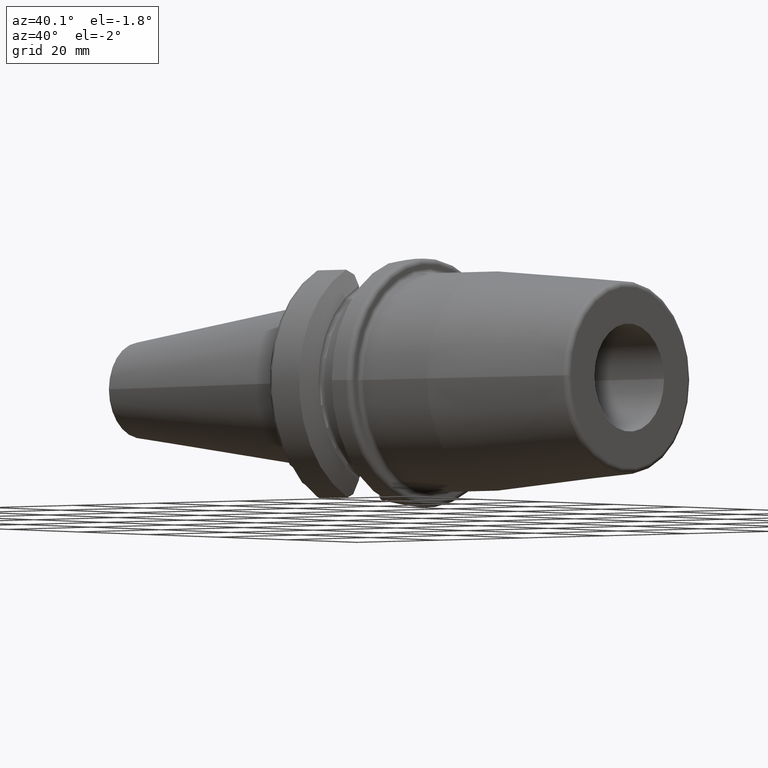
[diagram: clean part render]
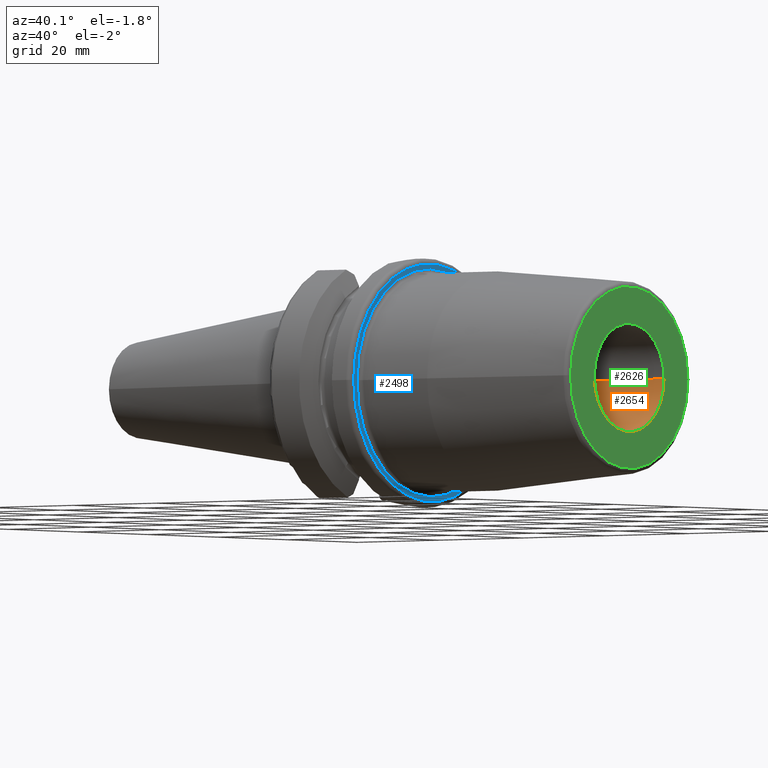
[diagram: same view with three faces highlighted in distinct colors, each labeled with its STEP entity id]
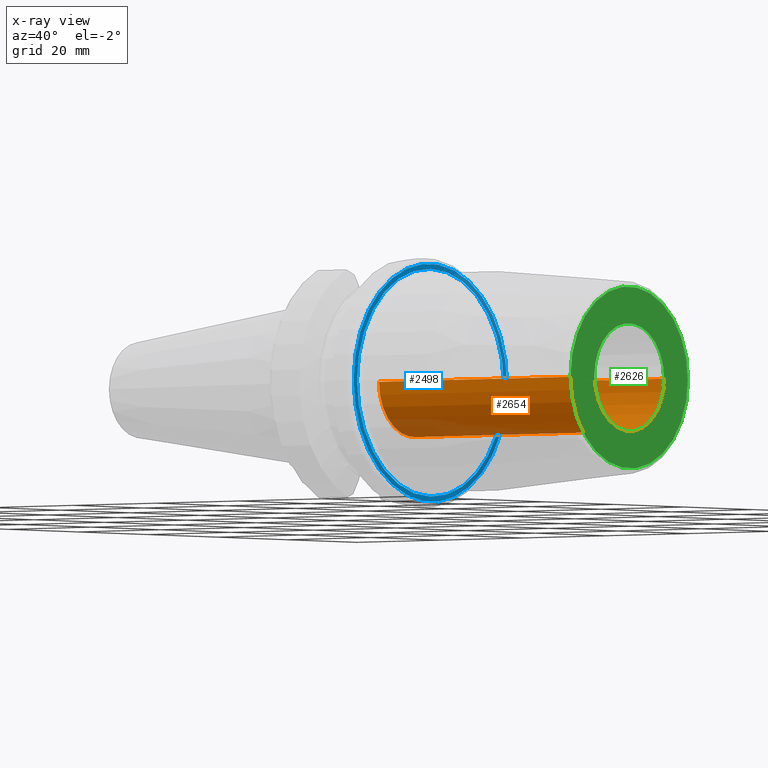
[diagram: x-ray of the same camera — body ghosted, the three highlighted faces saturated]
A machine part, auxiliary view with three faces highlighted in distinct colors.
The next image is the same camera in x-ray (body ghosted, the three faces saturated) — at least one of them is partly hidden behind the body in this view.
Their STEP definitions:

[orange] entity #2654 — the highlighted cylindrical surface (partial cylindrical patch) has radius 10 mm, axis along (-1, 0, 0).
#903=CARTESIAN_POINT('',(7.E1,0.E0,0.E0));
#904=DIRECTION('',(-1.E0,0.E0,0.E0));
#905=DIRECTION('',(0.E0,1.E0,0.E0));
#906=AXIS2_PLACEMENT_3D('',#903,#904,#905);
#918=DIRECTION('',(-1.E0,0.E0,0.E0));
#919=VECTOR('',#918,5.2E1);
#920=CARTESIAN_POINT('',(7.E1,-1.E1,0.E0));
#921=LINE('',#920,#919);
#922=DIRECTION('',(-1.E0,0.E0,0.E0));
#923=VECTOR('',#922,5.2E1);
#924=CARTESIAN_POINT('',(7.E1,1.E1,0.E0));
#925=LINE('',#924,#923);
#931=CARTESIAN_POINT('',(1.8E1,0.E0,0.E0));
#932=DIRECTION('',(-1.E0,0.E0,0.E0));
#933=DIRECTION('',(0.E0,1.E0,0.E0));
#934=AXIS2_PLACEMENT_3D('',#931,#932,#933);
#1375=CARTESIAN_POINT('',(1.8E1,-1.E1,0.E0));
#1376=CARTESIAN_POINT('',(1.8E1,1.E1,0.E0));
#1377=VERTEX_POINT('',#1375);
#1378=VERTEX_POINT('',#1376);
#1379=CARTESIAN_POINT('',(7.E1,-1.E1,0.E0));
#1380=CARTESIAN_POINT('',(7.E1,1.E1,0.E0));
#1381=VERTEX_POINT('',#1379);
#1382=VERTEX_POINT('',#1380);
#2642=CARTESIAN_POINT('',(7.E1,0.E0,0.E0));
#2643=DIRECTION('',(-1.E0,0.E0,0.E0));
#2644=DIRECTION('',(0.E0,-1.E0,0.E0));
#2645=AXIS2_PLACEMENT_3D('',#2642,#2643,#2644);
#2646=CYLINDRICAL_SURFACE('',#2645,1.E1);
#2647=ORIENTED_EDGE('',*,*,#2622,.T.);
#2648=ORIENTED_EDGE('',*,*,#2637,.T.);
#2650=ORIENTED_EDGE('',*,*,#2649,.F.);
#2651=ORIENTED_EDGE('',*,*,#2633,.F.);
#2652=EDGE_LOOP('',(#2647,#2648,#2650,#2651));
#2653=FACE_OUTER_BOUND('',#2652,.F.);
#2654=ADVANCED_FACE('',(#2653),#2646,.F.);
#907=CIRCLE('',#906,1.E1);
#935=CIRCLE('',#934,1.E1);
#2622=EDGE_CURVE('',#1382,#1381,#907,.T.);
#2633=EDGE_CURVE('',#1382,#1378,#925,.T.);
#2637=EDGE_CURVE('',#1381,#1377,#921,.T.);
#2649=EDGE_CURVE('',#1378,#1377,#935,.T.);

[blue] entity #2498 — the highlighted planar face has unit normal (1, 0, 0).
#802=CARTESIAN_POINT('',(2.2E1,0.E0,0.E0));
#803=DIRECTION('',(1.E0,0.E0,0.E0));
#804=DIRECTION('',(0.E0,1.E0,0.E0));
#805=AXIS2_PLACEMENT_3D('',#802,#803,#804);
#817=CARTESIAN_POINT('',(2.2E1,0.E0,0.E0));
#818=DIRECTION('',(-1.E0,0.E0,0.E0));
#819=DIRECTION('',(0.E0,1.E0,0.E0));
#820=AXIS2_PLACEMENT_3D('',#817,#818,#819);
#822=CARTESIAN_POINT('',(2.2E1,0.E0,0.E0));
#823=DIRECTION('',(1.E0,0.E0,0.E0));
#824=DIRECTION('',(0.E0,-1.E0,0.E0));
#825=AXIS2_PLACEMENT_3D('',#822,#823,#824);
#827=CARTESIAN_POINT('',(2.2E1,0.E0,0.E0));
#828=DIRECTION('',(1.E0,0.E0,0.E0));
#829=DIRECTION('',(0.E0,1.E0,0.E0));
#830=AXIS2_PLACEMENT_3D('',#827,#828,#829);
#1290=CARTESIAN_POINT('',(2.2E1,2.199E1,0.E0));
#1291=VERTEX_POINT('',#1290);
#1292=CARTESIAN_POINT('',(2.2E1,-2.199E1,0.E0));
#1293=VERTEX_POINT('',#1292);
#1387=CARTESIAN_POINT('',(2.2E1,-2.105E1,0.E0));
#1388=CARTESIAN_POINT('',(2.2E1,2.105E1,0.E0));
#1389=VERTEX_POINT('',#1387);
#1390=VERTEX_POINT('',#1388);
#2483=CARTESIAN_POINT('',(2.2E1,0.E0,0.E0));
#2484=DIRECTION('',(1.E0,0.E0,0.E0));
#2485=DIRECTION('',(0.E0,-1.E0,0.E0));
#2486=AXIS2_PLACEMENT_3D('',#2483,#2484,#2485);
#2487=PLANE('',#2486);
#2488=ORIENTED_EDGE('',*,*,#2478,.T.);
#2489=ORIENTED_EDGE('',*,*,#2462,.F.);
#2490=EDGE_LOOP('',(#2488,#2489));
#2491=FACE_OUTER_BOUND('',#2490,.F.);
#2493=ORIENTED_EDGE('',*,*,#2492,.T.);
#2495=ORIENTED_EDGE('',*,*,#2494,.T.);
#2496=EDGE_LOOP('',(#2493,#2495));
#2497=FACE_BOUND('',#2496,.F.);
#2498=ADVANCED_FACE('',(#2491,#2497),#2487,.T.);
#806=CIRCLE('',#805,2.199E1);
#821=CIRCLE('',#820,2.199E1);
#826=CIRCLE('',#825,2.105E1);
#831=CIRCLE('',#830,2.105E1);
#2462=EDGE_CURVE('',#1291,#1293,#806,.T.);
#2478=EDGE_CURVE('',#1291,#1293,#821,.T.);
#2492=EDGE_CURVE('',#1389,#1390,#826,.T.);
#2494=EDGE_CURVE('',#1390,#1389,#831,.T.);

[green] entity #2626 — the highlighted planar face has unit normal (1, 0, 0).
#898=CARTESIAN_POINT('',(7.E1,0.E0,0.E0));
#899=DIRECTION('',(-1.E0,0.E0,0.E0));
#900=DIRECTION('',(0.E0,-1.E0,0.E0));
#901=AXIS2_PLACEMENT_3D('',#898,#899,#900);
#903=CARTESIAN_POINT('',(7.E1,0.E0,0.E0));
#904=DIRECTION('',(-1.E0,0.E0,0.E0));
#905=DIRECTION('',(0.E0,1.E0,0.E0));
#906=AXIS2_PLACEMENT_3D('',#903,#904,#905);
#908=CARTESIAN_POINT('',(7.E1,0.E0,0.E0));
#909=DIRECTION('',(-1.E0,0.E0,0.E0));
#910=DIRECTION('',(0.E0,1.E0,0.E0));
#911=AXIS2_PLACEMENT_3D('',#908,#909,#910);
#913=CARTESIAN_POINT('',(7.E1,0.E0,0.E0));
#914=DIRECTION('',(-1.E0,0.E0,0.E0));
#915=DIRECTION('',(0.E0,-1.E0,0.E0));
#916=AXIS2_PLACEMENT_3D('',#913,#914,#915);
#1379=CARTESIAN_POINT('',(7.E1,-1.E1,0.E0));
#1380=CARTESIAN_POINT('',(7.E1,1.E1,0.E0));
#1381=VERTEX_POINT('',#1379);
#1382=VERTEX_POINT('',#1380);
#1399=CARTESIAN_POINT('',(7.E1,1.682560950834E1,0.E0));
#1400=CARTESIAN_POINT('',(7.E1,-1.682560950834E1,0.E0));
#1401=VERTEX_POINT('',#1399);
#1402=VERTEX_POINT('',#1400);
#2611=CARTESIAN_POINT('',(7.E1,0.E0,0.E0));
#2612=DIRECTION('',(1.E0,0.E0,0.E0));
#2613=DIRECTION('',(0.E0,-1.E0,0.E0));
#2614=AXIS2_PLACEMENT_3D('',#2611,#2612,#2613);
#2615=PLANE('',#2614);
#2616=ORIENTED_EDGE('',*,*,#2605,.T.);
#2617=ORIENTED_EDGE('',*,*,#2591,.T.);
#2618=EDGE_LOOP('',(#2616,#2617));
#2619=FACE_OUTER_BOUND('',#2618,.F.);
#2621=ORIENTED_EDGE('',*,*,#2620,.F.);
#2623=ORIENTED_EDGE('',*,*,#2622,.F.);
#2624=EDGE_LOOP('',(#2621,#2623));
#2625=FACE_BOUND('',#2624,.F.);
#2626=ADVANCED_FACE('',(#2619,#2625),#2615,.T.);
#902=CIRCLE('',#901,1.E1);
#907=CIRCLE('',#906,1.E1);
#912=CIRCLE('',#911,1.682560950834E1);
#917=CIRCLE('',#916,1.682560950834E1);
#2591=EDGE_CURVE('',#1402,#1401,#917,.T.);
#2605=EDGE_CURVE('',#1401,#1402,#912,.T.);
#2620=EDGE_CURVE('',#1381,#1382,#902,.T.);
#2622=EDGE_CURVE('',#1382,#1381,#907,.T.);